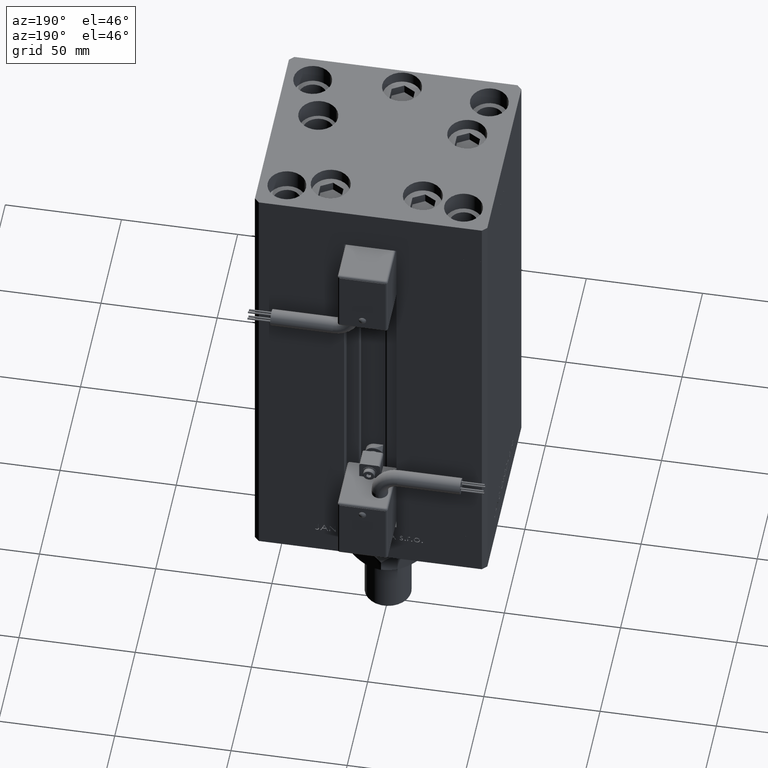
[diagram: clean part render]
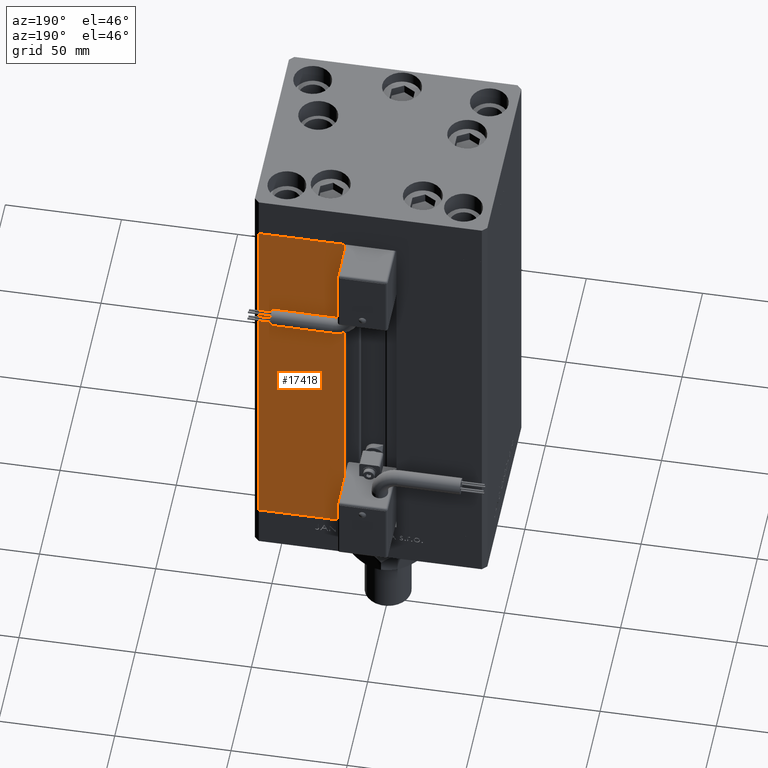
[diagram: same view with one face highlighted and labeled with its STEP entity id]
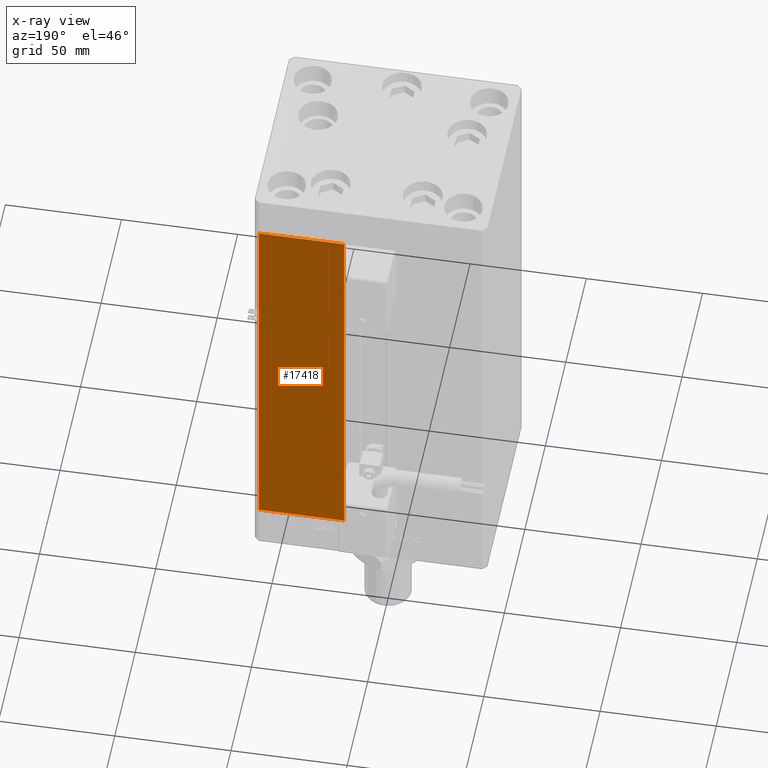
[diagram: x-ray of the same camera — body ghosted, the highlighted face saturated]
A machine part, auxiliary view. The second image highlights one B-rep face of the part: STEP entity #17418.
The next image is the same camera in x-ray: the body ghosted, the highlighted face saturated — about 0% of this face is hidden behind the body in this view.
In plain terms, the highlighted planar face has unit normal (0, -1, 0).
Its self-contained STEP definition (entity closure, byte-faithful):
#2834 = LINE ( 'NONE', #14251, #41718 ) ;
#4132 = AXIS2_PLACEMENT_3D ( 'NONE', #9174, #34180, #41539 ) ;
#5670 = ORIENTED_EDGE ( 'NONE', *, *, #38217, .T. ) ;
#9174 = CARTESIAN_POINT ( 'NONE',  ( -11.24999999999999822, 43.50000000000000000, 168.5000000000000000 ) ) ;
#11560 = CARTESIAN_POINT ( 'NONE',  ( -11.24999999999999822, 43.50000000000000000, 168.5000000000000000 ) ) ;
#12359 = DIRECTION ( 'NONE',  ( 1.000000000000000000, 0.000000000000000000, 0.000000000000000000 ) ) ;
#14251 = CARTESIAN_POINT ( 'NONE',  ( 11.24999999999999822, 43.50000000000000000, 0.000000000000000000 ) ) ;
#17039 = ORIENTED_EDGE ( 'NONE', *, *, #36021, .T. ) ;
#17292 = CARTESIAN_POINT ( 'NONE',  ( 11.24999999999999822, 43.50000000000000000, 0.000000000000000000 ) ) ;
#17418 = ADVANCED_FACE ( 'NONE', ( #46418 ), #17605, .F. ) ;
#17518 = EDGE_LOOP ( 'NONE', ( #17039, #5670, #51516, #35122 ) ) ;
#17605 = PLANE ( 'NONE',  #4132 ) ;
#22349 = CARTESIAN_POINT ( 'NONE',  ( -11.24999999999999822, 43.50000000000000000, 0.000000000000000000 ) ) ;
#28363 = VERTEX_POINT ( 'NONE', #37421 ) ;
#28931 = VERTEX_POINT ( 'NONE', #32163 ) ;
#30244 = LINE ( 'NONE', #22349, #53786 ) ;
#31446 = VECTOR ( 'NONE', #12359, 1000.000000000000000 ) ;
#32163 = CARTESIAN_POINT ( 'NONE',  ( 11.24999999999999112, 43.50000000000000000, 168.5000000000000000 ) ) ;
#33016 = LINE ( 'NONE', #49617, #36974 ) ;
#34180 = DIRECTION ( 'NONE',  ( 0.000000000000000000, -1.000000000000000000, 0.000000000000000000 ) ) ;
#35122 = ORIENTED_EDGE ( 'NONE', *, *, #53427, .T. ) ;
#36021 = EDGE_CURVE ( 'NONE', #28363, #38135, #30244, .T. ) ;
#36974 = VECTOR ( 'NONE', #51893, 1000.000000000000000 ) ;
#37421 = CARTESIAN_POINT ( 'NONE',  ( 48.00000000000000711, 43.50000000000000000, 0.000000000000000000 ) ) ;
#38135 = VERTEX_POINT ( 'NONE', #17292 ) ;
#38217 = EDGE_CURVE ( 'NONE', #38135, #28931, #2834, .T. ) ;
#41053 = EDGE_CURVE ( 'NONE', #28931, #52611, #49339, .T. ) ;
#41539 = DIRECTION ( 'NONE',  ( 0.000000000000000000, -0.000000000000000000, -1.000000000000000000 ) ) ;
#41718 = VECTOR ( 'NONE', #52332, 1000.000000000000000 ) ;
#43910 = CARTESIAN_POINT ( 'NONE',  ( 48.00000000000000711, 43.50000000000000000, 168.5000000000000000 ) ) ;
#46418 = FACE_OUTER_BOUND ( 'NONE', #17518, .T. ) ;
#47916 = DIRECTION ( 'NONE',  ( -1.000000000000000000, 0.000000000000000000, 0.000000000000000000 ) ) ;
#49339 = LINE ( 'NONE', #11560, #31446 ) ;
#49617 = CARTESIAN_POINT ( 'NONE',  ( 48.00000000000000711, 43.50000000000000000, 168.5000000000000000 ) ) ;
#51516 = ORIENTED_EDGE ( 'NONE', *, *, #41053, .T. ) ;
#51893 = DIRECTION ( 'NONE',  ( -0.000000000000000000, -0.000000000000000000, -1.000000000000000000 ) ) ;
#52332 = DIRECTION ( 'NONE',  ( -0.000000000000000000, -0.000000000000000000, 1.000000000000000000 ) ) ;
#52611 = VERTEX_POINT ( 'NONE', #43910 ) ;
#53427 = EDGE_CURVE ( 'NONE', #52611, #28363, #33016, .T. ) ;
#53786 = VECTOR ( 'NONE', #47916, 1000.000000000000000 ) ;